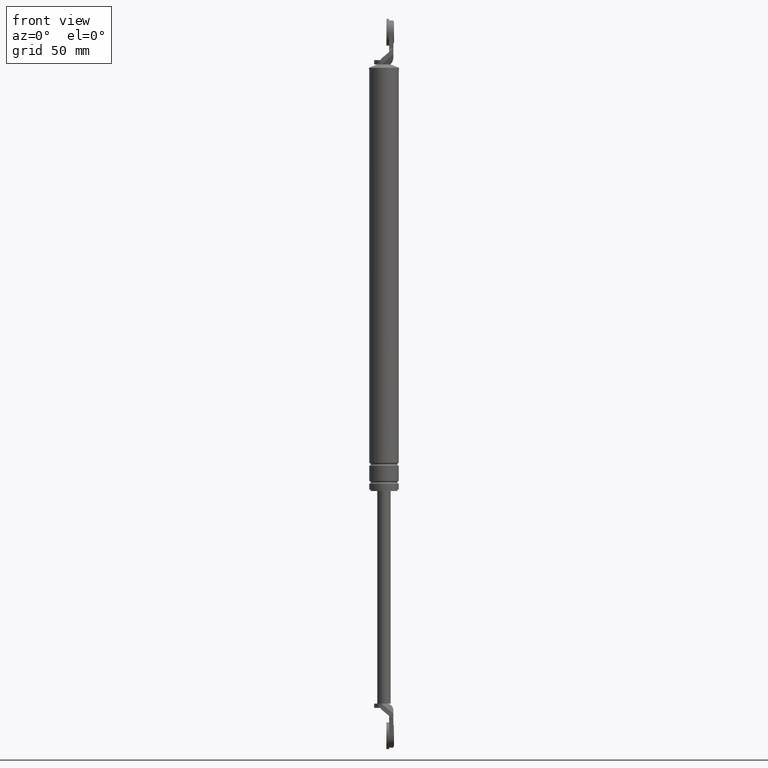
[diagram: clean part render]
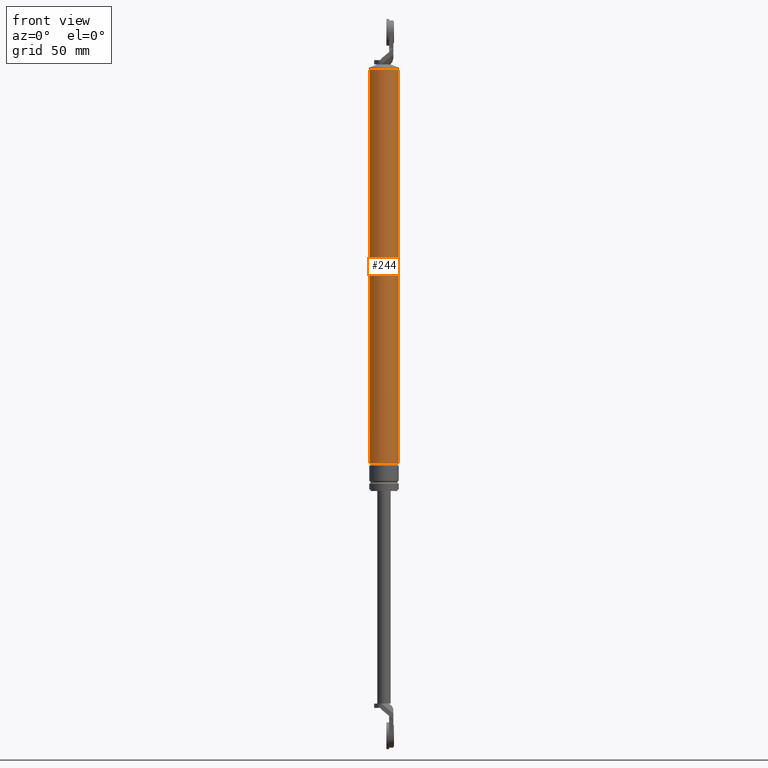
[diagram: same view with one face highlighted and labeled with its STEP entity id]
A machine part, front view. The second image highlights one B-rep face of the part: STEP entity #244.
In plain terms, the highlighted cylindrical surface (edge-blend (fillet) strip) has radius 11 mm, axis along (0, 0, 1).
Its self-contained STEP definition (entity closure, byte-faithful):
#244=ADVANCED_FACE('',(#695),#694,.T.);
#694=CYLINDRICAL_SURFACE('',#1407,1.10000000000E+001);
#695=FACE_OUTER_BOUND('',#1408,.T.);
#1404=CARTESIAN_POINT('',(0.00000000000E+000,3.58204186421E-014,0.00000000000E+000));
#1405=DIRECTION('',(-0.00000000000E+000,-0.00000000000E+000,1.00000000000E+000));
#1406=DIRECTION('',(1.00000000000E+000,0.00000000000E+000,0.00000000000E+000));
#1407=AXIS2_PLACEMENT_3D('',#1404,#1405,#1406);
#1408=EDGE_LOOP('',(#1954,#1955,#1956,#1957));
#1954=ORIENTED_EDGE('',*,*,#2264,.F.);
#1955=ORIENTED_EDGE('',*,*,#2261,.T.);
#1956=ORIENTED_EDGE('',*,*,#2214,.T.);
#1957=ORIENTED_EDGE('',*,*,#2263,.F.);
#2214=EDGE_CURVE('',#2736,#2737,#2738,.T.);
#2261=EDGE_CURVE('',#3046,#2736,#3047,.T.);
#2263=EDGE_CURVE('',#3053,#2737,#3060,.T.);
#2264=EDGE_CURVE('',#3046,#3053,#3066,.T.);
#2736=VERTEX_POINT('',#3916);
#2737=VERTEX_POINT('',#3917);
#2738=CIRCLE('',#3921,1.10000000000E+001);
#3046=VERTEX_POINT('',#4103);
#3047=(BOUNDED_CURVE() B_SPLINE_CURVE(1,(#4104,#4105),.UNSPECIFIED.,.F.,.F.) B_SPLINE_CURVE_WITH_KNOTS((2,2),(3.18471337672E-002,9.68152866275E-001),.UNSPECIFIED.) CURVE() GEOMETRIC_REPRESENTATION_ITEM() RATIONAL_B_SPLINE_CURVE((1.00000000000E+000,1.00000000000E+000)) REPRESENTATION_ITEM('') );
#3053=VERTEX_POINT('',#4106);
#3060=(BOUNDED_CURVE() B_SPLINE_CURVE(1,(#4111,#4112),.UNSPECIFIED.,.F.,.F.) B_SPLINE_CURVE_WITH_KNOTS((2,2),(3.18471337580E-002,9.68152866242E-001),.UNSPECIFIED.) CURVE() GEOMETRIC_REPRESENTATION_ITEM() RATIONAL_B_SPLINE_CURVE((7.50000000000E-001,7.50000000000E-001)) REPRESENTATION_ITEM('') );
#3066=CIRCLE('',#4116,1.10000000000E+001);
#3916=CARTESIAN_POINT('',(1.10000000000E+001,3.61192557345E-014,8.49999850000E+001));
#3917=CARTESIAN_POINT('',(-1.10000000000E+001,3.58204186421E-014,8.49999850000E+001));
#3918=CARTESIAN_POINT('',(0.00000000000E+000,3.58204186421E-014,8.49999850000E+001));
#3919=DIRECTION('',(-0.00000000000E+000,0.00000000000E+000,-1.00000000000E+000));
#3920=DIRECTION('',(-1.00000000000E+000,-1.22460635382E-016,0.00000000000E+000));
#3921=AXIS2_PLACEMENT_3D('',#3918,#3919,#3920);
#4103=CARTESIAN_POINT('',(1.10000000000E+001,3.61192557345E-014,-2.09000015000E+002));
#4104=CARTESIAN_POINT('',(1.10000000000E+001,3.58204186421E-014,-2.09000014997E+002));
#4105=CARTESIAN_POINT('',(1.10000000000E+001,3.58204186421E-014,8.49999850104E+001));
#4106=CARTESIAN_POINT('',(-1.10000000000E+001,3.58204186421E-014,-2.09000015000E+002));
#4111=CARTESIAN_POINT('',(-1.10000000000E+001,3.55271367880E-014,-2.09000015000E+002));
#4112=CARTESIAN_POINT('',(-1.10000000000E+001,3.55271367880E-014,8.49999850000E+001));
#4113=CARTESIAN_POINT('',(0.00000000000E+000,3.58204186421E-014,-2.09000015000E+002));
#4114=DIRECTION('',(-0.00000000000E+000,0.00000000000E+000,-1.00000000000E+000));
#4115=DIRECTION('',(-1.00000000000E+000,-1.22460635382E-016,0.00000000000E+000));
#4116=AXIS2_PLACEMENT_3D('',#4113,#4114,#4115);